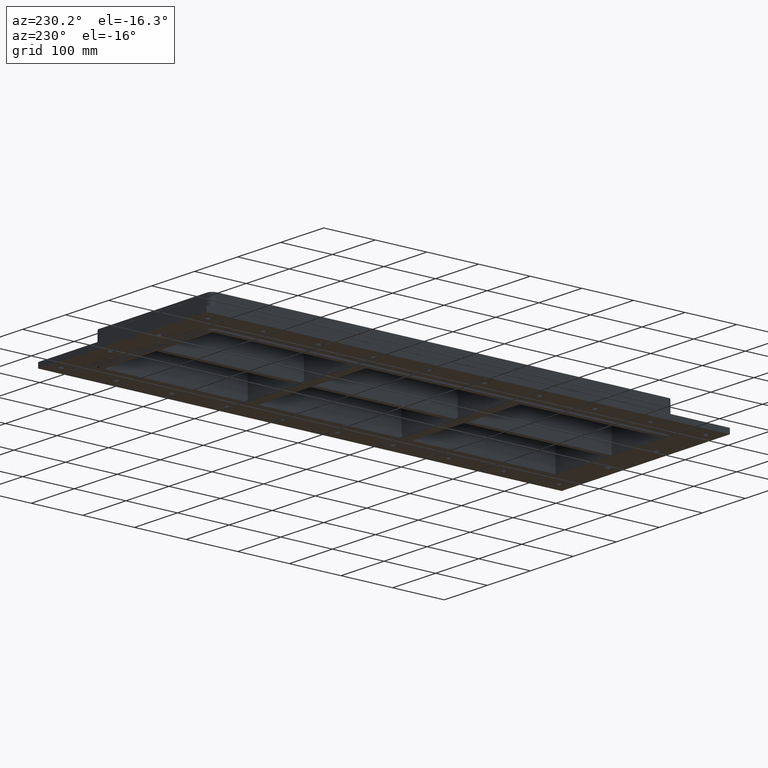
[diagram: clean part render]
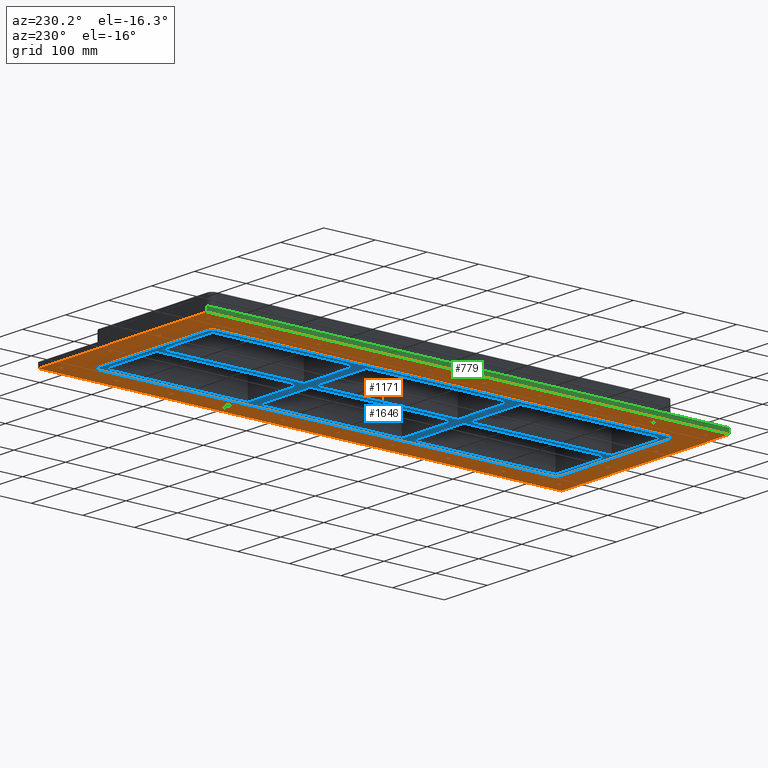
[diagram: same view with three faces highlighted in distinct colors, each labeled with its STEP entity id]
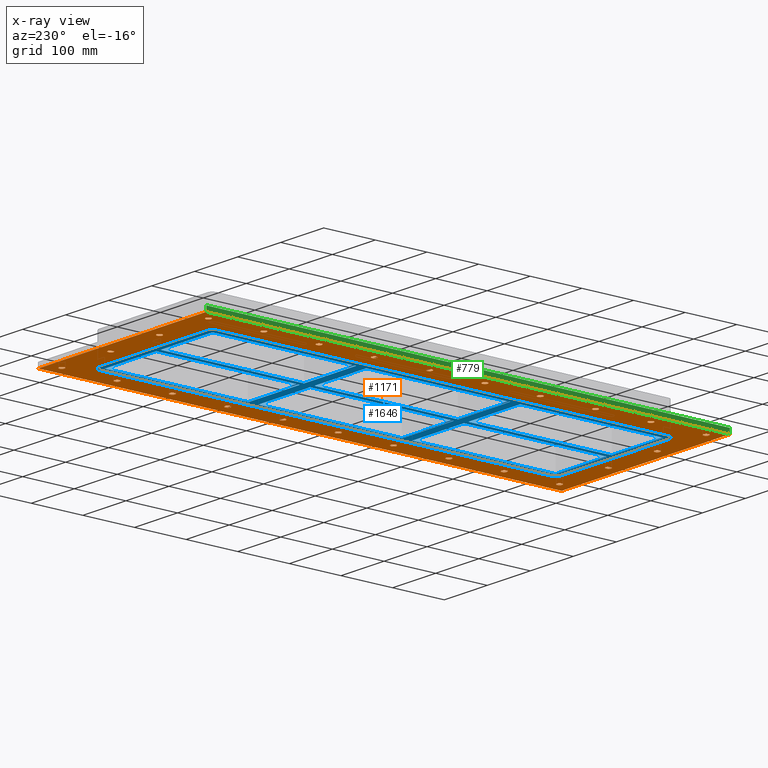
[diagram: x-ray of the same camera — body ghosted, the three highlighted faces saturated]
A machine part, auxiliary view with three faces highlighted in distinct colors.
The next image is the same camera in x-ray (body ghosted, the three faces saturated) — at least one of them is partly hidden behind the body in this view.
Their STEP definitions:

[orange] entity #1171 — the highlighted planar face has unit normal (0, 0, 1).
#73=CARTESIAN_POINT('',(-62.08333333333325,-482.0,-27.000000000000028));
#74=VERTEX_POINT('',#73);
#75=CARTESIAN_POINT('',(-56.833333333333265,-482.0,-27.000000000000028));
#76=DIRECTION('',(0.0,0.0,1.0));
#77=DIRECTION('',(1.0,0.0,0.0));
#78=AXIS2_PLACEMENT_3D('',#75,#76,#77);
#79=CIRCLE('',#78,5.25);
#80=EDGE_CURVE('',#74,#74,#79,.T.);
#101=CARTESIAN_POINT('',(51.583333333333421,-482.0,-27.000000000000028));
#102=VERTEX_POINT('',#101);
#103=CARTESIAN_POINT('',(56.833333333333407,-482.0,-27.000000000000028));
#104=DIRECTION('',(0.0,0.0,1.0));
#105=DIRECTION('',(1.0,0.0,0.0));
#106=AXIS2_PLACEMENT_3D('',#103,#104,#105);
#107=CIRCLE('',#106,5.25);
#108=EDGE_CURVE('',#102,#102,#107,.T.);
#129=CARTESIAN_POINT('',(51.583333333333279,482.0,-27.000000000000028));
#130=VERTEX_POINT('',#129);
#131=CARTESIAN_POINT('',(56.833333333333265,482.0,-27.000000000000028));
#132=DIRECTION('',(0.0,0.0,1.0));
#133=DIRECTION('',(1.0,0.0,0.0));
#134=AXIS2_PLACEMENT_3D('',#131,#132,#133);
#135=CIRCLE('',#134,5.25);
#136=EDGE_CURVE('',#130,#130,#135,.T.);
#157=CARTESIAN_POINT('',(-62.083333333333393,482.0,-27.000000000000028));
#158=VERTEX_POINT('',#157);
#159=CARTESIAN_POINT('',(-56.833333333333407,482.0,-27.000000000000028));
#160=DIRECTION('',(0.0,0.0,1.0));
#161=DIRECTION('',(1.0,0.0,0.0));
#162=AXIS2_PLACEMENT_3D('',#159,#160,#161);
#163=CIRCLE('',#162,5.25);
#164=EDGE_CURVE('',#158,#158,#163,.T.);
#185=CARTESIAN_POINT('',(165.25000000000006,-374.88888888888891,-27.000000000000028));
#186=VERTEX_POINT('',#185);
#187=CARTESIAN_POINT('',(170.50000000000006,-374.88888888888891,-27.000000000000028));
#188=DIRECTION('',(0.0,0.0,1.0));
#189=DIRECTION('',(1.0,0.0,0.0));
#190=AXIS2_PLACEMENT_3D('',#187,#188,#189);
#191=CIRCLE('',#190,5.25);
#192=EDGE_CURVE('',#186,#186,#191,.T.);
#213=CARTESIAN_POINT('',(165.25000000000006,-267.77777777777789,-27.000000000000028));
#214=VERTEX_POINT('',#213);
#215=CARTESIAN_POINT('',(170.50000000000006,-267.77777777777789,-27.000000000000028));
#216=DIRECTION('',(0.0,0.0,1.0));
#217=DIRECTION('',(1.0,0.0,0.0));
#218=AXIS2_PLACEMENT_3D('',#215,#216,#217);
#219=CIRCLE('',#218,5.25);
#220=EDGE_CURVE('',#214,#214,#219,.T.);
#241=CARTESIAN_POINT('',(165.25000000000003,-160.6666666666668,-27.000000000000028));
#242=VERTEX_POINT('',#241);
#243=CARTESIAN_POINT('',(170.5,-160.6666666666668,-27.000000000000028));
#244=DIRECTION('',(0.0,0.0,1.0));
#245=DIRECTION('',(1.0,0.0,0.0));
#246=AXIS2_PLACEMENT_3D('',#243,#244,#245);
#247=CIRCLE('',#246,5.25);
#248=EDGE_CURVE('',#242,#242,#247,.T.);
#269=CARTESIAN_POINT('',(165.25000000000003,-53.555555555555578,-27.000000000000028));
#270=VERTEX_POINT('',#269);
#271=CARTESIAN_POINT('',(170.5,-53.555555555555578,-27.000000000000028));
#272=DIRECTION('',(0.0,0.0,1.0));
#273=DIRECTION('',(1.0,0.0,0.0));
#274=AXIS2_PLACEMENT_3D('',#271,#272,#273);
#275=CIRCLE('',#274,5.25);
#276=EDGE_CURVE('',#270,#270,#275,.T.);
#297=CARTESIAN_POINT('',(165.25,53.555555555555507,-27.000000000000028));
#298=VERTEX_POINT('',#297);
#299=CARTESIAN_POINT('',(170.49999999999997,53.555555555555507,-27.000000000000028));
#300=DIRECTION('',(0.0,0.0,1.0));
#301=DIRECTION('',(1.0,0.0,0.0));
#302=AXIS2_PLACEMENT_3D('',#299,#300,#301);
#303=CIRCLE('',#302,5.25);
#304=EDGE_CURVE('',#298,#298,#303,.T.);
#325=CARTESIAN_POINT('',(165.25,160.66666666666663,-27.000000000000028));
#326=VERTEX_POINT('',#325);
#327=CARTESIAN_POINT('',(170.49999999999997,160.66666666666663,-27.000000000000028));
#328=DIRECTION('',(0.0,0.0,1.0));
#329=DIRECTION('',(1.0,0.0,0.0));
#330=AXIS2_PLACEMENT_3D('',#327,#328,#329);
#331=CIRCLE('',#330,5.25);
#332=EDGE_CURVE('',#326,#326,#331,.T.);
#353=CARTESIAN_POINT('',(165.24999999999994,267.77777777777783,-27.000000000000028));
#354=VERTEX_POINT('',#353);
#355=CARTESIAN_POINT('',(170.49999999999994,267.77777777777783,-27.000000000000028));
#356=DIRECTION('',(0.0,0.0,1.0));
#357=DIRECTION('',(1.0,0.0,0.0));
#358=AXIS2_PLACEMENT_3D('',#355,#356,#357);
#359=CIRCLE('',#358,5.25);
#360=EDGE_CURVE('',#354,#354,#359,.T.);
#381=CARTESIAN_POINT('',(165.24999999999994,374.88888888888891,-27.000000000000028));
#382=VERTEX_POINT('',#381);
#383=CARTESIAN_POINT('',(170.49999999999994,374.88888888888891,-27.000000000000028));
#384=DIRECTION('',(0.0,0.0,1.0));
#385=DIRECTION('',(1.0,0.0,0.0));
#386=AXIS2_PLACEMENT_3D('',#383,#384,#385);
#387=CIRCLE('',#386,5.25);
#388=EDGE_CURVE('',#382,#382,#387,.T.);
#409=CARTESIAN_POINT('',(-175.75000000000003,374.88888888888891,-27.000000000000028));
#410=VERTEX_POINT('',#409);
#411=CARTESIAN_POINT('',(-170.50000000000006,374.88888888888891,-27.000000000000028));
#412=DIRECTION('',(0.0,0.0,1.0));
#413=DIRECTION('',(1.0,0.0,0.0));
#414=AXIS2_PLACEMENT_3D('',#411,#412,#413);
#415=CIRCLE('',#414,5.25);
#416=EDGE_CURVE('',#410,#410,#415,.T.);
#437=CARTESIAN_POINT('',(-175.75000000000003,267.77777777777789,-27.000000000000028));
#438=VERTEX_POINT('',#437);
#439=CARTESIAN_POINT('',(-170.50000000000006,267.77777777777789,-27.000000000000028));
#440=DIRECTION('',(0.0,0.0,1.0));
#441=DIRECTION('',(1.0,0.0,0.0));
#442=AXIS2_PLACEMENT_3D('',#439,#440,#441);
#443=CIRCLE('',#442,5.25);
#444=EDGE_CURVE('',#438,#438,#443,.T.);
#465=CARTESIAN_POINT('',(-175.75,160.6666666666668,-27.000000000000028));
#466=VERTEX_POINT('',#465);
#467=CARTESIAN_POINT('',(-170.5,160.6666666666668,-27.000000000000028));
#468=DIRECTION('',(0.0,0.0,1.0));
#469=DIRECTION('',(1.0,0.0,0.0));
#470=AXIS2_PLACEMENT_3D('',#467,#468,#469);
#471=CIRCLE('',#470,5.25);
#472=EDGE_CURVE('',#466,#466,#471,.T.);
#493=CARTESIAN_POINT('',(-175.75,53.555555555555578,-27.000000000000028));
#494=VERTEX_POINT('',#493);
#495=CARTESIAN_POINT('',(-170.5,53.555555555555578,-27.000000000000028));
#496=DIRECTION('',(0.0,0.0,1.0));
#497=DIRECTION('',(1.0,0.0,0.0));
#498=AXIS2_PLACEMENT_3D('',#495,#496,#497);
#499=CIRCLE('',#498,5.25);
#500=EDGE_CURVE('',#494,#494,#499,.T.);
#521=CARTESIAN_POINT('',(-175.74999999999994,-53.555555555555507,-27.000000000000028));
#522=VERTEX_POINT('',#521);
#523=CARTESIAN_POINT('',(-170.49999999999997,-53.555555555555507,-27.000000000000028));
#524=DIRECTION('',(0.0,0.0,1.0));
#525=DIRECTION('',(1.0,0.0,0.0));
#526=AXIS2_PLACEMENT_3D('',#523,#524,#525);
#527=CIRCLE('',#526,5.25);
#528=EDGE_CURVE('',#522,#522,#527,.T.);
#549=CARTESIAN_POINT('',(-175.74999999999994,-160.66666666666663,-27.000000000000028));
#550=VERTEX_POINT('',#549);
#551=CARTESIAN_POINT('',(-170.49999999999997,-160.66666666666663,-27.000000000000028));
#552=DIRECTION('',(0.0,0.0,1.0));
#553=DIRECTION('',(1.0,0.0,0.0));
#554=AXIS2_PLACEMENT_3D('',#551,#552,#553);
#555=CIRCLE('',#554,5.25);
#556=EDGE_CURVE('',#550,#550,#555,.T.);
#577=CARTESIAN_POINT('',(-175.74999999999991,-267.77777777777783,-27.000000000000028));
#578=VERTEX_POINT('',#577);
#579=CARTESIAN_POINT('',(-170.49999999999994,-267.77777777777783,-27.000000000000028));
#580=DIRECTION('',(0.0,0.0,1.0));
#581=DIRECTION('',(1.0,0.0,0.0));
#582=AXIS2_PLACEMENT_3D('',#579,#580,#581);
#583=CIRCLE('',#582,5.25);
#584=EDGE_CURVE('',#578,#578,#583,.T.);
#605=CARTESIAN_POINT('',(-175.74999999999991,-374.88888888888891,-27.000000000000028));
#606=VERTEX_POINT('',#605);
#607=CARTESIAN_POINT('',(-170.49999999999994,-374.88888888888891,-27.000000000000028));
#608=DIRECTION('',(0.0,0.0,1.0));
#609=DIRECTION('',(1.0,0.0,0.0));
#610=AXIS2_PLACEMENT_3D('',#607,#608,#609);
#611=CIRCLE('',#610,5.25);
#612=EDGE_CURVE('',#606,#606,#611,.T.);
#633=CARTESIAN_POINT('',(-175.75000000000006,482.0,-27.000000000000028));
#634=VERTEX_POINT('',#633);
#635=CARTESIAN_POINT('',(-170.50000000000009,482.0,-27.000000000000028));
#636=DIRECTION('',(0.0,0.0,1.0));
#637=DIRECTION('',(1.0,0.0,0.0));
#638=AXIS2_PLACEMENT_3D('',#635,#636,#637);
#639=CIRCLE('',#638,5.25);
#640=EDGE_CURVE('',#634,#634,#639,.T.);
#661=CARTESIAN_POINT('',(165.24999999999994,482.0,-27.000000000000028));
#662=VERTEX_POINT('',#661);
#663=CARTESIAN_POINT('',(170.49999999999994,482.0,-27.000000000000028));
#664=DIRECTION('',(0.0,0.0,1.0));
#665=DIRECTION('',(1.0,0.0,0.0));
#666=AXIS2_PLACEMENT_3D('',#663,#664,#665);
#667=CIRCLE('',#666,5.25);
#668=EDGE_CURVE('',#662,#662,#667,.T.);
#689=CARTESIAN_POINT('',(165.25000000000009,-482.0,-27.000000000000028));
#690=VERTEX_POINT('',#689);
#691=CARTESIAN_POINT('',(170.50000000000009,-482.0,-27.000000000000028));
#692=DIRECTION('',(0.0,0.0,1.0));
#693=DIRECTION('',(1.0,0.0,0.0));
#694=AXIS2_PLACEMENT_3D('',#691,#692,#693);
#695=CIRCLE('',#694,5.25);
#696=EDGE_CURVE('',#690,#690,#695,.T.);
#717=CARTESIAN_POINT('',(-175.74999999999991,-482.0,-27.000000000000028));
#718=VERTEX_POINT('',#717);
#719=CARTESIAN_POINT('',(-170.49999999999994,-482.0,-27.000000000000028));
#720=DIRECTION('',(0.0,0.0,1.0));
#721=DIRECTION('',(1.0,0.0,0.0));
#722=AXIS2_PLACEMENT_3D('',#719,#720,#721);
#723=CIRCLE('',#722,5.25);
#724=EDGE_CURVE('',#718,#718,#723,.T.);
#745=CARTESIAN_POINT('',(-195.49999999999994,-507.0,-27.0));
#746=VERTEX_POINT('',#745);
#747=CARTESIAN_POINT('',(-195.50000000000009,507.0,-27.0));
#748=VERTEX_POINT('',#747);
#749=CARTESIAN_POINT('',(-195.49999999999994,-507.0,-27.0));
#750=DIRECTION('',(0.0,1.0,0.0));
#751=VECTOR('',#750,1014.0);
#752=LINE('',#749,#751);
#753=EDGE_CURVE('',#746,#748,#752,.T.);
#785=CARTESIAN_POINT('',(195.49999999999994,507.0,-27.0));
#786=VERTEX_POINT('',#785);
#787=CARTESIAN_POINT('',(-195.50000000000009,507.0,-27.0));
#788=DIRECTION('',(1.0,0.0,0.0));
#789=VECTOR('',#788,391.0);
#790=LINE('',#787,#789);
#791=EDGE_CURVE('',#748,#786,#790,.T.);
#816=CARTESIAN_POINT('',(195.50000000000009,-507.0,-27.0));
#817=VERTEX_POINT('',#816);
#818=CARTESIAN_POINT('',(195.49999999999994,507.0,-27.0));
#819=DIRECTION('',(0.0,-1.0,0.0));
#820=VECTOR('',#819,1014.0);
#821=LINE('',#818,#820);
#822=EDGE_CURVE('',#786,#817,#821,.T.);
#847=CARTESIAN_POINT('',(195.50000000000009,-507.0,-27.0));
#848=DIRECTION('',(-1.0,0.0,0.0));
#849=VECTOR('',#848,391.0);
#850=LINE('',#847,#849);
#851=EDGE_CURVE('',#817,#746,#850,.T.);
#1018=CARTESIAN_POINT('',(0.0,0.0,-27.0));
#1019=DIRECTION('',(0.0,0.0,1.0));
#1020=DIRECTION('',(1.0,0.0,0.0));
#1021=AXIS2_PLACEMENT_3D('',#1018,#1019,#1020);
#1022=PLANE('',#1021);
#1023=ORIENTED_EDGE('',*,*,#851,.T.);
#1024=ORIENTED_EDGE('',*,*,#753,.T.);
#1025=ORIENTED_EDGE('',*,*,#791,.T.);
#1026=ORIENTED_EDGE('',*,*,#822,.T.);
#1027=EDGE_LOOP('',(#1023,#1024,#1025,#1026));
#1028=FACE_OUTER_BOUND('',#1027,.T.);
#1029=ORIENTED_EDGE('',*,*,#80,.T.);
#1030=EDGE_LOOP('',(#1029));
#1031=FACE_BOUND('',#1030,.T.);
#1032=ORIENTED_EDGE('',*,*,#108,.T.);
#1033=EDGE_LOOP('',(#1032));
#1034=FACE_BOUND('',#1033,.T.);
#1035=ORIENTED_EDGE('',*,*,#136,.T.);
#1036=EDGE_LOOP('',(#1035));
#1037=FACE_BOUND('',#1036,.T.);
#1038=ORIENTED_EDGE('',*,*,#164,.T.);
#1039=EDGE_LOOP('',(#1038));
#1040=FACE_BOUND('',#1039,.T.);
#1041=ORIENTED_EDGE('',*,*,#192,.T.);
#1042=EDGE_LOOP('',(#1041));
#1043=FACE_BOUND('',#1042,.T.);
#1044=ORIENTED_EDGE('',*,*,#220,.T.);
#1045=EDGE_LOOP('',(#1044));
#1046=FACE_BOUND('',#1045,.T.);
#1047=ORIENTED_EDGE('',*,*,#248,.T.);
#1048=EDGE_LOOP('',(#1047));
#1049=FACE_BOUND('',#1048,.T.);
#1050=ORIENTED_EDGE('',*,*,#276,.T.);
#1051=EDGE_LOOP('',(#1050));
#1052=FACE_BOUND('',#1051,.T.);
#1053=ORIENTED_EDGE('',*,*,#304,.T.);
#1054=EDGE_LOOP('',(#1053));
#1055=FACE_BOUND('',#1054,.T.);
#1056=ORIENTED_EDGE('',*,*,#332,.T.);
#1057=EDGE_LOOP('',(#1056));
#1058=FACE_BOUND('',#1057,.T.);
#1059=ORIENTED_EDGE('',*,*,#360,.T.);
#1060=EDGE_LOOP('',(#1059));
#1061=FACE_BOUND('',#1060,.T.);
#1062=ORIENTED_EDGE('',*,*,#388,.T.);
#1063=EDGE_LOOP('',(#1062));
#1064=FACE_BOUND('',#1063,.T.);
#1065=ORIENTED_EDGE('',*,*,#416,.T.);
#1066=EDGE_LOOP('',(#1065));
#1067=FACE_BOUND('',#1066,.T.);
#1068=ORIENTED_EDGE('',*,*,#444,.T.);
#1069=EDGE_LOOP('',(#1068));
#1070=FACE_BOUND('',#1069,.T.);
#1071=ORIENTED_EDGE('',*,*,#472,.T.);
#1072=EDGE_LOOP('',(#1071));
#1073=FACE_BOUND('',#1072,.T.);
#1074=ORIENTED_EDGE('',*,*,#500,.T.);
#1075=EDGE_LOOP('',(#1074));
#1076=FACE_BOUND('',#1075,.T.);
#1077=ORIENTED_EDGE('',*,*,#528,.T.);
#1078=EDGE_LOOP('',(#1077));
#1079=FACE_BOUND('',#1078,.T.);
#1080=ORIENTED_EDGE('',*,*,#556,.T.);
#1081=EDGE_LOOP('',(#1080));
#1082=FACE_BOUND('',#1081,.T.);
#1083=ORIENTED_EDGE('',*,*,#584,.T.);
#1084=EDGE_LOOP('',(#1083));
#1085=FACE_BOUND('',#1084,.T.);
#1086=ORIENTED_EDGE('',*,*,#612,.T.);
#1087=EDGE_LOOP('',(#1086));
#1088=FACE_BOUND('',#1087,.T.);
#1089=ORIENTED_EDGE('',*,*,#640,.T.);
#1090=EDGE_LOOP('',(#1089));
#1091=FACE_BOUND('',#1090,.T.);
#1092=ORIENTED_EDGE('',*,*,#668,.T.);
#1093=EDGE_LOOP('',(#1092));
#1094=FACE_BOUND('',#1093,.T.);
#1095=ORIENTED_EDGE('',*,*,#696,.T.);
#1096=EDGE_LOOP('',(#1095));
#1097=FACE_BOUND('',#1096,.T.);
#1098=ORIENTED_EDGE('',*,*,#724,.T.);
#1099=EDGE_LOOP('',(#1098));
#1100=FACE_BOUND('',#1099,.T.);
#1101=CARTESIAN_POINT('',(125.49999999999997,447.0,-27.0));
#1102=VERTEX_POINT('',#1101);
#1103=CARTESIAN_POINT('',(135.49999999999994,437.0,-27.0));
#1104=VERTEX_POINT('',#1103);
#1105=CARTESIAN_POINT('',(125.4999999999999,437.00000000000011,-27.0));
#1106=DIRECTION('',(0.0,0.0,-1.0));
#1107=DIRECTION('',(0.707106781186547,0.707106781186547,0.0));
#1108=AXIS2_PLACEMENT_3D('',#1105,#1106,#1107);
#1109=CIRCLE('',#1108,9.999999999999998);
#1110=EDGE_CURVE('',#1102,#1104,#1109,.T.);
#1111=ORIENTED_EDGE('',*,*,#1110,.F.);
#1112=CARTESIAN_POINT('',(-125.50000000000006,447.0,-27.0));
#1113=VERTEX_POINT('',#1112);
#1114=CARTESIAN_POINT('',(-125.50000000000009,447.00000000000011,-27.0));
#1115=DIRECTION('',(1.0,0.0,0.0));
#1116=VECTOR('',#1115,251.00000000000006);
#1117=LINE('',#1114,#1116);
#1118=EDGE_CURVE('',#1113,#1102,#1117,.T.);
#1119=ORIENTED_EDGE('',*,*,#1118,.F.);
#1120=CARTESIAN_POINT('',(-135.50000000000009,437.0,-27.0));
#1121=VERTEX_POINT('',#1120);
#1122=CARTESIAN_POINT('',(-125.50000000000011,437.00000000000011,-27.0));
#1123=DIRECTION('',(0.0,0.0,-1.0));
#1124=DIRECTION('',(-0.707106781186547,0.707106781186547,0.0));
#1125=AXIS2_PLACEMENT_3D('',#1122,#1123,#1124);
#1126=CIRCLE('',#1125,9.999999999999998);
#1127=EDGE_CURVE('',#1121,#1113,#1126,.T.);
#1128=ORIENTED_EDGE('',*,*,#1127,.F.);
#1129=CARTESIAN_POINT('',(-135.49999999999994,-437.0,-27.0));
#1130=VERTEX_POINT('',#1129);
#1131=CARTESIAN_POINT('',(-135.49999999999986,-437.00000000000011,-27.0));
#1132=DIRECTION('',(0.0,1.0,0.0));
#1133=VECTOR('',#1132,874.00000000000011);
#1134=LINE('',#1131,#1133);
#1135=EDGE_CURVE('',#1130,#1121,#1134,.T.);
#1136=ORIENTED_EDGE('',*,*,#1135,.F.);
#1137=CARTESIAN_POINT('',(-125.49999999999996,-447.00000000000011,-27.0));
#1138=VERTEX_POINT('',#1137);
#1139=CARTESIAN_POINT('',(-125.49999999999983,-436.99999999999989,-27.0));
#1140=DIRECTION('',(0.0,0.0,-1.0));
#1141=DIRECTION('',(-0.707106781186547,-0.707106781186547,0.0));
#1142=AXIS2_PLACEMENT_3D('',#1139,#1140,#1141);
#1143=CIRCLE('',#1142,9.999999999999998);
#1144=EDGE_CURVE('',#1138,#1130,#1143,.T.);
#1145=ORIENTED_EDGE('',*,*,#1144,.F.);
#1146=CARTESIAN_POINT('',(125.50000000000009,-447.00000000000011,-27.0));
#1147=VERTEX_POINT('',#1146);
#1148=CARTESIAN_POINT('',(125.50000000000009,-446.99999999999989,-27.0));
#1149=DIRECTION('',(-1.0,0.0,0.0));
#1150=VECTOR('',#1149,251.00000000000006);
#1151=LINE('',#1148,#1150);
#1152=EDGE_CURVE('',#1147,#1138,#1151,.T.);
#1153=ORIENTED_EDGE('',*,*,#1152,.F.);
#1154=CARTESIAN_POINT('',(135.50000000000009,-437.0,-27.0));
#1155=VERTEX_POINT('',#1154);
#1156=CARTESIAN_POINT('',(125.50000000000004,-436.99999999999989,-27.0));
#1157=DIRECTION('',(0.0,0.0,-1.0));
#1158=DIRECTION('',(0.707106781186547,-0.707106781186547,0.0));
#1159=AXIS2_PLACEMENT_3D('',#1156,#1157,#1158);
#1160=CIRCLE('',#1159,9.999999999999998);
#1161=EDGE_CURVE('',#1155,#1147,#1160,.T.);
#1162=ORIENTED_EDGE('',*,*,#1161,.F.);
#1163=CARTESIAN_POINT('',(135.49999999999989,437.00000000000006,-27.0));
#1164=DIRECTION('',(0.0,-1.0,0.0));
#1165=VECTOR('',#1164,874.0);
#1166=LINE('',#1163,#1165);
#1167=EDGE_CURVE('',#1104,#1155,#1166,.T.);
#1168=ORIENTED_EDGE('',*,*,#1167,.F.);
#1169=EDGE_LOOP('',(#1111,#1119,#1128,#1136,#1145,#1153,#1162,#1168));
#1170=FACE_BOUND('',#1169,.T.);
#1171=ADVANCED_FACE('',(#1028,#1031,#1034,#1037,#1040,#1043,#1046,#1049,#1052,#1055,#1058,#1061,#1064,#1067,#1070,#1073,#1076,#1079,#1082,#1085,#1088,#1091,#1094,#1097,#1100,#1170),#1022,.F.);

[blue] entity #1646 — the highlighted planar face has unit normal (0, 0, 1).
#1178=CARTESIAN_POINT('',(125.50000000000004,-446.99999999999989,-30.0));
#1179=VERTEX_POINT('',#1178);
#1186=CARTESIAN_POINT('',(135.50000000000006,-436.99999999999989,-30.0));
#1187=VERTEX_POINT('',#1186);
#1188=CARTESIAN_POINT('',(125.50000000000004,-436.99999999999989,-30.0));
#1189=DIRECTION('',(0.0,0.0,1.0));
#1190=DIRECTION('',(0.707106781186547,-0.707106781186547,0.0));
#1191=AXIS2_PLACEMENT_3D('',#1188,#1189,#1190);
#1192=CIRCLE('',#1191,9.999999999999998);
#1193=EDGE_CURVE('',#1179,#1187,#1192,.T.);
#1242=CARTESIAN_POINT('',(-125.49999999999983,-446.99999999999989,-30.0));
#1243=VERTEX_POINT('',#1242);
#1250=CARTESIAN_POINT('',(125.50000000000006,-446.99999999999989,-30.0));
#1251=DIRECTION('',(-1.0,0.0,0.0));
#1252=VECTOR('',#1251,250.99999999999989);
#1253=LINE('',#1250,#1252);
#1254=EDGE_CURVE('',#1179,#1243,#1253,.T.);
#1290=CARTESIAN_POINT('',(-135.49999999999983,-436.99999999999994,-30.0));
#1291=VERTEX_POINT('',#1290);
#1298=CARTESIAN_POINT('',(-125.49999999999983,-436.99999999999989,-30.0));
#1299=DIRECTION('',(0.0,0.0,1.0));
#1300=DIRECTION('',(-0.707106781186547,-0.707106781186547,0.0));
#1301=AXIS2_PLACEMENT_3D('',#1298,#1299,#1300);
#1302=CIRCLE('',#1301,9.999999999999998);
#1303=EDGE_CURVE('',#1291,#1243,#1302,.T.);
#1340=CARTESIAN_POINT('',(-135.50000000000011,437.00000000000011,-30.0));
#1341=VERTEX_POINT('',#1340);
#1348=CARTESIAN_POINT('',(-135.49999999999983,-436.99999999999989,-30.0));
#1349=DIRECTION('',(0.0,1.0,0.0));
#1350=VECTOR('',#1349,874.0);
#1351=LINE('',#1348,#1350);
#1352=EDGE_CURVE('',#1291,#1341,#1351,.T.);
#1388=CARTESIAN_POINT('',(-125.50000000000011,447.00000000000011,-30.0));
#1389=VERTEX_POINT('',#1388);
#1396=CARTESIAN_POINT('',(-125.50000000000011,437.00000000000011,-30.0));
#1397=DIRECTION('',(0.0,0.0,1.0));
#1398=DIRECTION('',(-0.707106781186547,0.707106781186547,0.0));
#1399=AXIS2_PLACEMENT_3D('',#1396,#1397,#1398);
#1400=CIRCLE('',#1399,9.999999999999998);
#1401=EDGE_CURVE('',#1389,#1341,#1400,.T.);
#1407=CARTESIAN_POINT('',(0.0,1.297274E-013,-30.0));
#1408=DIRECTION('',(0.0,0.0,1.0));
#1409=DIRECTION('',(1.0,0.0,0.0));
#1410=AXIS2_PLACEMENT_3D('',#1407,#1408,#1409);
#1411=PLANE('',#1410);
#1412=ORIENTED_EDGE('',*,*,#1193,.F.);
#1413=ORIENTED_EDGE('',*,*,#1254,.T.);
#1414=ORIENTED_EDGE('',*,*,#1303,.F.);
#1415=ORIENTED_EDGE('',*,*,#1352,.T.);
#1416=ORIENTED_EDGE('',*,*,#1401,.F.);
#1417=CARTESIAN_POINT('',(125.4999999999999,447.00000000000011,-30.0));
#1418=VERTEX_POINT('',#1417);
#1419=CARTESIAN_POINT('',(-125.50000000000011,447.00000000000011,-30.0));
#1420=DIRECTION('',(1.0,0.0,0.0));
#1421=VECTOR('',#1420,251.0);
#1422=LINE('',#1419,#1421);
#1423=EDGE_CURVE('',#1389,#1418,#1422,.T.);
#1424=ORIENTED_EDGE('',*,*,#1423,.T.);
#1425=CARTESIAN_POINT('',(135.49999999999989,437.00000000000017,-30.0));
#1426=VERTEX_POINT('',#1425);
#1427=CARTESIAN_POINT('',(125.4999999999999,437.00000000000011,-30.0));
#1428=DIRECTION('',(0.0,0.0,1.0));
#1429=DIRECTION('',(0.707106781186547,0.707106781186547,0.0));
#1430=AXIS2_PLACEMENT_3D('',#1427,#1428,#1429);
#1431=CIRCLE('',#1430,9.999999999999998);
#1432=EDGE_CURVE('',#1426,#1418,#1431,.T.);
#1433=ORIENTED_EDGE('',*,*,#1432,.F.);
#1434=CARTESIAN_POINT('',(135.49999999999991,437.00000000000011,-30.0));
#1435=DIRECTION('',(0.0,-1.0,0.0));
#1436=VECTOR('',#1435,874.0);
#1437=LINE('',#1434,#1436);
#1438=EDGE_CURVE('',#1426,#1187,#1437,.T.);
#1439=ORIENTED_EDGE('',*,*,#1438,.T.);
#1440=EDGE_LOOP('',(#1412,#1413,#1414,#1415,#1416,#1424,#1433,#1439));
#1441=FACE_OUTER_BOUND('',#1440,.T.);
#1442=CARTESIAN_POINT('',(4.999999999999869,436.99999999999937,-30.0));
#1443=VERTEX_POINT('',#1442);
#1444=CARTESIAN_POINT('',(4.999999999999958,158.99999999999955,-30.0));
#1445=VERTEX_POINT('',#1444);
#1446=CARTESIAN_POINT('',(4.999999999999869,436.99999999999937,-30.0));
#1447=DIRECTION('',(0.0,-1.0,0.0));
#1448=VECTOR('',#1447,277.99999999999983);
#1449=LINE('',#1446,#1448);
#1450=EDGE_CURVE('',#1443,#1445,#1449,.T.);
#1451=ORIENTED_EDGE('',*,*,#1450,.T.);
#1452=CARTESIAN_POINT('',(125.49999999999997,158.99999999999943,-30.0));
#1453=VERTEX_POINT('',#1452);
#1454=CARTESIAN_POINT('',(4.999999999999957,158.99999999999955,-30.0));
#1455=DIRECTION('',(1.0,0.0,0.0));
#1456=VECTOR('',#1455,120.50000000000001);
#1457=LINE('',#1454,#1456);
#1458=EDGE_CURVE('',#1445,#1453,#1457,.T.);
#1459=ORIENTED_EDGE('',*,*,#1458,.T.);
#1460=CARTESIAN_POINT('',(125.49999999999991,436.99999999999943,-30.0));
#1461=VERTEX_POINT('',#1460);
#1462=CARTESIAN_POINT('',(125.49999999999999,158.99999999999943,-30.0));
#1463=DIRECTION('',(0.0,1.0,0.0));
#1464=VECTOR('',#1463,278.0);
#1465=LINE('',#1462,#1464);
#1466=EDGE_CURVE('',#1453,#1461,#1465,.T.);
#1467=ORIENTED_EDGE('',*,*,#1466,.T.);
#1468=CARTESIAN_POINT('',(125.4999999999999,436.99999999999937,-30.0));
#1469=DIRECTION('',(-1.0,0.0,0.0));
#1470=VECTOR('',#1469,120.50000000000003);
#1471=LINE('',#1468,#1470);
#1472=EDGE_CURVE('',#1461,#1443,#1471,.T.);
#1473=ORIENTED_EDGE('',*,*,#1472,.T.);
#1474=EDGE_LOOP('',(#1451,#1459,#1467,#1473));
#1475=FACE_BOUND('',#1474,.T.);
#1476=CARTESIAN_POINT('',(4.999999999999976,138.9999999999994,-30.0));
#1477=VERTEX_POINT('',#1476);
#1478=CARTESIAN_POINT('',(5.000000000000066,-139.00000000000045,-30.0));
#1479=VERTEX_POINT('',#1478);
#1480=CARTESIAN_POINT('',(4.999999999999977,138.99999999999937,-30.0));
#1481=DIRECTION('',(0.0,-1.0,0.0));
#1482=VECTOR('',#1481,277.99999999999983);
#1483=LINE('',#1480,#1482);
#1484=EDGE_CURVE('',#1477,#1479,#1483,.T.);
#1485=ORIENTED_EDGE('',*,*,#1484,.T.);
#1486=CARTESIAN_POINT('',(125.50000000000009,-139.0000000000006,-30.0));
#1487=VERTEX_POINT('',#1486);
#1488=CARTESIAN_POINT('',(5.000000000000057,-139.00000000000045,-30.0));
#1489=DIRECTION('',(1.0,0.0,0.0));
#1490=VECTOR('',#1489,120.50000000000003);
#1491=LINE('',#1488,#1490);
#1492=EDGE_CURVE('',#1479,#1487,#1491,.T.);
#1493=ORIENTED_EDGE('',*,*,#1492,.T.);
#1494=CARTESIAN_POINT('',(125.50000000000003,138.99999999999943,-30.0));
#1495=VERTEX_POINT('',#1494);
#1496=CARTESIAN_POINT('',(125.50000000000009,-139.0000000000006,-30.0));
#1497=DIRECTION('',(0.0,1.0,0.0));
#1498=VECTOR('',#1497,278.0);
#1499=LINE('',#1496,#1498);
#1500=EDGE_CURVE('',#1487,#1495,#1499,.T.);
#1501=ORIENTED_EDGE('',*,*,#1500,.T.);
#1502=CARTESIAN_POINT('',(125.50000000000001,138.99999999999943,-30.0));
#1503=DIRECTION('',(-1.0,0.0,0.0));
#1504=VECTOR('',#1503,120.50000000000004);
#1505=LINE('',#1502,#1504);
#1506=EDGE_CURVE('',#1495,#1477,#1505,.T.);
#1507=ORIENTED_EDGE('',*,*,#1506,.T.);
#1508=EDGE_LOOP('',(#1485,#1493,#1501,#1507));
#1509=FACE_BOUND('',#1508,.T.);
#1510=CARTESIAN_POINT('',(5.000000000000066,-159.0000000000006,-30.0));
#1511=VERTEX_POINT('',#1510);
#1512=CARTESIAN_POINT('',(5.000000000000155,-437.00000000000045,-30.0));
#1513=VERTEX_POINT('',#1512);
#1514=CARTESIAN_POINT('',(5.000000000000066,-159.0000000000006,-30.0));
#1515=DIRECTION('',(0.0,-1.0,0.0));
#1516=VECTOR('',#1515,277.99999999999989);
#1517=LINE('',#1514,#1516);
#1518=EDGE_CURVE('',#1511,#1513,#1517,.T.);
#1519=ORIENTED_EDGE('',*,*,#1518,.T.);
#1520=CARTESIAN_POINT('',(125.50000000000017,-437.00000000000057,-30.0));
#1521=VERTEX_POINT('',#1520);
#1522=CARTESIAN_POINT('',(5.000000000000156,-437.00000000000045,-30.0));
#1523=DIRECTION('',(1.0,0.0,0.0));
#1524=VECTOR('',#1523,120.50000000000001);
#1525=LINE('',#1522,#1524);
#1526=EDGE_CURVE('',#1513,#1521,#1525,.T.);
#1527=ORIENTED_EDGE('',*,*,#1526,.T.);
#1528=CARTESIAN_POINT('',(125.50000000000011,-159.0000000000006,-30.0));
#1529=VERTEX_POINT('',#1528);
#1530=CARTESIAN_POINT('',(125.50000000000017,-437.00000000000057,-30.0));
#1531=DIRECTION('',(0.0,1.0,0.0));
#1532=VECTOR('',#1531,278.0);
#1533=LINE('',#1530,#1532);
#1534=EDGE_CURVE('',#1521,#1529,#1533,.T.);
#1535=ORIENTED_EDGE('',*,*,#1534,.T.);
#1536=CARTESIAN_POINT('',(125.50000000000013,-159.00000000000057,-30.0));
#1537=DIRECTION('',(-1.0,0.0,0.0));
#1538=VECTOR('',#1537,120.50000000000006);
#1539=LINE('',#1536,#1538);
#1540=EDGE_CURVE('',#1529,#1511,#1539,.T.);
#1541=ORIENTED_EDGE('',*,*,#1540,.T.);
#1542=EDGE_LOOP('',(#1519,#1527,#1535,#1541));
#1543=FACE_BOUND('',#1542,.T.);
#1544=CARTESIAN_POINT('',(-125.50000000000011,436.99999999999937,-30.0));
#1545=VERTEX_POINT('',#1544);
#1546=CARTESIAN_POINT('',(-125.50000000000003,158.99999999999955,-30.0));
#1547=VERTEX_POINT('',#1546);
#1548=CARTESIAN_POINT('',(-125.50000000000011,436.99999999999937,-30.0));
#1549=DIRECTION('',(0.0,-1.0,0.0));
#1550=VECTOR('',#1549,277.99999999999983);
#1551=LINE('',#1548,#1550);
#1552=EDGE_CURVE('',#1545,#1547,#1551,.T.);
#1553=ORIENTED_EDGE('',*,*,#1552,.T.);
#1554=CARTESIAN_POINT('',(-5.00000000000003,158.99999999999943,-30.0));
#1555=VERTEX_POINT('',#1554);
#1556=CARTESIAN_POINT('',(-125.50000000000001,158.99999999999957,-30.0));
#1557=DIRECTION('',(1.0,0.0,0.0));
#1558=VECTOR('',#1557,120.49999999999999);
#1559=LINE('',#1556,#1558);
#1560=EDGE_CURVE('',#1547,#1555,#1559,.T.);
#1561=ORIENTED_EDGE('',*,*,#1560,.T.);
#1562=CARTESIAN_POINT('',(-5.000000000000084,436.99999999999943,-30.0));
#1563=VERTEX_POINT('',#1562);
#1564=CARTESIAN_POINT('',(-5.000000000000029,158.99999999999943,-30.0));
#1565=DIRECTION('',(0.0,1.0,0.0));
#1566=VECTOR('',#1565,278.0);
#1567=LINE('',#1564,#1566);
#1568=EDGE_CURVE('',#1555,#1563,#1567,.T.);
#1569=ORIENTED_EDGE('',*,*,#1568,.T.);
#1570=CARTESIAN_POINT('',(-5.000000000000078,436.99999999999937,-30.0));
#1571=DIRECTION('',(-1.0,0.0,0.0));
#1572=VECTOR('',#1571,120.50000000000003);
#1573=LINE('',#1570,#1572);
#1574=EDGE_CURVE('',#1563,#1545,#1573,.T.);
#1575=ORIENTED_EDGE('',*,*,#1574,.T.);
#1576=EDGE_LOOP('',(#1553,#1561,#1569,#1575));
#1577=FACE_BOUND('',#1576,.T.);
#1578=CARTESIAN_POINT('',(-125.50000000000003,138.9999999999994,-30.0));
#1579=VERTEX_POINT('',#1578);
#1580=CARTESIAN_POINT('',(-125.49999999999994,-139.00000000000045,-30.0));
#1581=VERTEX_POINT('',#1580);
#1582=CARTESIAN_POINT('',(-125.50000000000004,138.99999999999943,-30.0));
#1583=DIRECTION('',(0.0,-1.0,0.0));
#1584=VECTOR('',#1583,277.99999999999989);
#1585=LINE('',#1582,#1584);
#1586=EDGE_CURVE('',#1579,#1581,#1585,.T.);
#1587=ORIENTED_EDGE('',*,*,#1586,.T.);
#1588=CARTESIAN_POINT('',(-4.999999999999935,-139.0000000000006,-30.0));
#1589=VERTEX_POINT('',#1588);
#1590=CARTESIAN_POINT('',(-125.49999999999993,-139.00000000000045,-30.0));
#1591=DIRECTION('',(1.0,0.0,0.0));
#1592=VECTOR('',#1591,120.5);
#1593=LINE('',#1590,#1592);
#1594=EDGE_CURVE('',#1581,#1589,#1593,.T.);
#1595=ORIENTED_EDGE('',*,*,#1594,.T.);
#1596=CARTESIAN_POINT('',(-4.999999999999989,138.99999999999943,-30.0));
#1597=VERTEX_POINT('',#1596);
#1598=CARTESIAN_POINT('',(-4.999999999999935,-139.0000000000006,-30.0));
#1599=DIRECTION('',(0.0,1.0,0.0));
#1600=VECTOR('',#1599,278.0);
#1601=LINE('',#1598,#1600);
#1602=EDGE_CURVE('',#1589,#1597,#1601,.T.);
#1603=ORIENTED_EDGE('',*,*,#1602,.T.);
#1604=CARTESIAN_POINT('',(-4.999999999999993,138.99999999999943,-30.0));
#1605=DIRECTION('',(-1.0,0.0,0.0));
#1606=VECTOR('',#1605,120.50000000000003);
#1607=LINE('',#1604,#1606);
#1608=EDGE_CURVE('',#1597,#1579,#1607,.T.);
#1609=ORIENTED_EDGE('',*,*,#1608,.T.);
#1610=EDGE_LOOP('',(#1587,#1595,#1603,#1609));
#1611=FACE_BOUND('',#1610,.T.);
#1612=CARTESIAN_POINT('',(-4.99999999999984,-437.00000000000057,-30.0));
#1613=VERTEX_POINT('',#1612);
#1614=CARTESIAN_POINT('',(-4.999999999999893,-159.0000000000006,-30.0));
#1615=VERTEX_POINT('',#1614);
#1616=CARTESIAN_POINT('',(-4.999999999999841,-437.00000000000057,-30.0));
#1617=DIRECTION('',(0.0,1.0,0.0));
#1618=VECTOR('',#1617,278.0);
#1619=LINE('',#1616,#1618);
#1620=EDGE_CURVE('',#1613,#1615,#1619,.T.);
#1621=ORIENTED_EDGE('',*,*,#1620,.T.);
#1622=CARTESIAN_POINT('',(-125.49999999999994,-159.0000000000006,-30.0));
#1623=VERTEX_POINT('',#1622);
#1624=CARTESIAN_POINT('',(-4.999999999999893,-159.0000000000006,-30.0));
#1625=DIRECTION('',(-1.0,0.0,0.0));
#1626=VECTOR('',#1625,120.50000000000006);
#1627=LINE('',#1624,#1626);
#1628=EDGE_CURVE('',#1615,#1623,#1627,.T.);
#1629=ORIENTED_EDGE('',*,*,#1628,.T.);
#1630=CARTESIAN_POINT('',(-125.49999999999984,-437.00000000000045,-30.0));
#1631=VERTEX_POINT('',#1630);
#1632=CARTESIAN_POINT('',(-125.49999999999993,-159.00000000000063,-30.0));
#1633=DIRECTION('',(0.0,-1.0,0.0));
#1634=VECTOR('',#1633,277.99999999999983);
#1635=LINE('',#1632,#1634);
#1636=EDGE_CURVE('',#1623,#1631,#1635,.T.);
#1637=ORIENTED_EDGE('',*,*,#1636,.T.);
#1638=CARTESIAN_POINT('',(-125.49999999999986,-437.0000000000004,-30.0));
#1639=DIRECTION('',(1.0,0.0,0.0));
#1640=VECTOR('',#1639,120.50000000000001);
#1641=LINE('',#1638,#1640);
#1642=EDGE_CURVE('',#1631,#1613,#1641,.T.);
#1643=ORIENTED_EDGE('',*,*,#1642,.T.);
#1644=EDGE_LOOP('',(#1621,#1629,#1637,#1643));
#1645=FACE_BOUND('',#1644,.T.);
#1646=ADVANCED_FACE('',(#1441,#1475,#1509,#1543,#1577,#1611,#1645),#1411,.F.);

[green] entity #779 — the highlighted planar face has unit normal (-1, 0, 0).
#740=CARTESIAN_POINT('',(-195.50000000000009,507.0,-27.0));
#741=DIRECTION('',(-1.0,0.0,0.0));
#742=DIRECTION('',(0.0,-1.0,0.0));
#743=AXIS2_PLACEMENT_3D('',#740,#741,#742);
#744=PLANE('',#743);
#745=CARTESIAN_POINT('',(-195.49999999999994,-507.0,-27.0));
#746=VERTEX_POINT('',#745);
#747=CARTESIAN_POINT('',(-195.50000000000009,507.0,-27.0));
#748=VERTEX_POINT('',#747);
#749=CARTESIAN_POINT('',(-195.49999999999994,-507.0,-27.0));
#750=DIRECTION('',(0.0,1.0,0.0));
#751=VECTOR('',#750,1014.0);
#752=LINE('',#749,#751);
#753=EDGE_CURVE('',#746,#748,#752,.T.);
#754=ORIENTED_EDGE('',*,*,#753,.F.);
#755=CARTESIAN_POINT('',(-195.49999999999994,-507.0,-17.0));
#756=VERTEX_POINT('',#755);
#757=CARTESIAN_POINT('',(-195.49999999999994,-507.0,-27.0));
#758=DIRECTION('',(0.0,0.0,1.0));
#759=VECTOR('',#758,10.0);
#760=LINE('',#757,#759);
#761=EDGE_CURVE('',#746,#756,#760,.T.);
#762=ORIENTED_EDGE('',*,*,#761,.T.);
#763=CARTESIAN_POINT('',(-195.50000000000009,507.0,-17.0));
#764=VERTEX_POINT('',#763);
#765=CARTESIAN_POINT('',(-195.50000000000009,507.0,-17.0));
#766=DIRECTION('',(0.0,-1.0,0.0));
#767=VECTOR('',#766,1014.0);
#768=LINE('',#765,#767);
#769=EDGE_CURVE('',#764,#756,#768,.T.);
#770=ORIENTED_EDGE('',*,*,#769,.F.);
#771=CARTESIAN_POINT('',(-195.50000000000009,507.0,-27.0));
#772=DIRECTION('',(0.0,0.0,1.0));
#773=VECTOR('',#772,10.0);
#774=LINE('',#771,#773);
#775=EDGE_CURVE('',#748,#764,#774,.T.);
#776=ORIENTED_EDGE('',*,*,#775,.F.);
#777=EDGE_LOOP('',(#754,#762,#770,#776));
#778=FACE_OUTER_BOUND('',#777,.T.);
#779=ADVANCED_FACE('',(#778),#744,.T.);